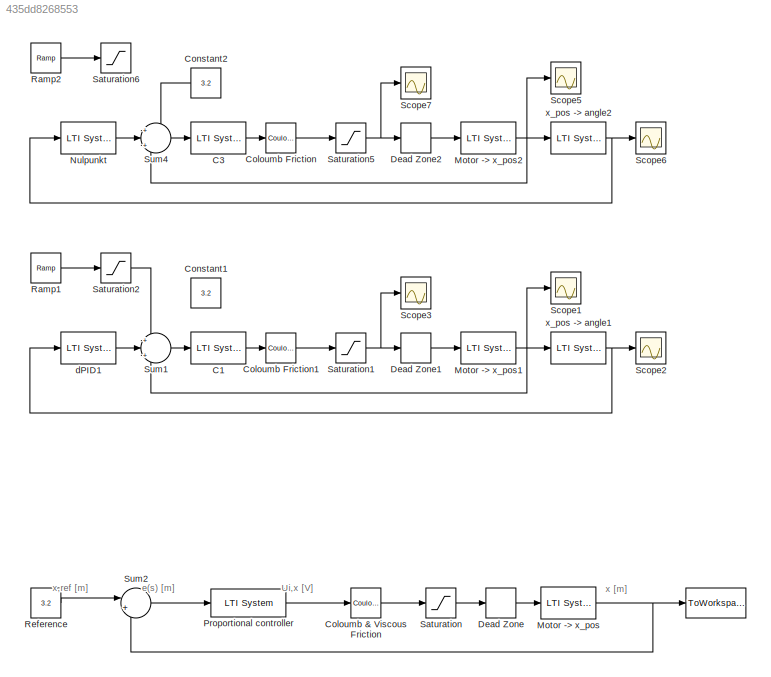
MODEL slx_435dd8268553
KIND model
CONFIG AbsTol = auto
CONFIG FixedStep = auto
CONFIG MaxStep = auto
CONFIG MinStep = auto
CONFIG RelTol = 1e-3
CONFIG SampleTimeConstraint = Unconstrained
CONFIG Solver = ode45
CONFIG SolverMode = Auto
CONFIG SolverName = ode45
CONFIG StartTime = 0.0
CONFIG StopTime = 10
BLOCK [ToWorkspace]  
  FixptAsFi = on
  MaxDataPoints = inf
  Ports = [1]
  SampleTime = -1
  Save2DSignal = 3-D array (concatenate along third dimension)
  SaveFormat = Timeseries
  VariableName = Pos_out
BLOCK [Reference] C1  REF=cstblocks/LTI System
  IC = []
  Ports = [1, 1]
  SourceBlock = cstblocks/LTI System
  SourceType = LTI Block
  sys = C1
BLOCK [Reference] C3  REF=cstblocks/LTI System
  IC = []
  Ports = [1, 1]
  SourceBlock = cstblocks/LTI System
  SourceType = LTI Block
  sys = C1
BLOCK [Reference] Coloumb & Viscous Friction  REF=simulink/Discontinuities/Coulomb &
Viscous Friction
  Ports = [1, 1]
  SourceBlock = simulink/Discontinuities/Coulomb &\nViscous Friction
  SourceType = Coulombic and Viscous Friction
  gain = 1
  offset = [4.2]
BLOCK [Reference] Coloumb Friction  REF=simulink/Discontinuities/Coulomb &
Viscous Friction
  Ports = [1, 1]
  SourceBlock = simulink/Discontinuities/Coulomb &\nViscous Friction
  SourceType = Coulombic and Viscous Friction
  gain = 1
  offset = [4.2]
BLOCK [Reference] Coloumb Friction1  REF=simulink/Discontinuities/Coulomb &
Viscous Friction
  Ports = [1, 1]
  SourceBlock = simulink/Discontinuities/Coulomb &\nViscous Friction
  SourceType = Coulombic and Viscous Friction
  gain = 1
  offset = [4.2]
BLOCK [Constant] Constant1
  Value = 3.2
BLOCK [Constant] Constant2
  Value = 3.2
BLOCK [DeadZone] Dead Zone
  LowerValue = -4.2
  UpperValue = 4.2
BLOCK [DeadZone] Dead Zone1
  LowerValue = -4.2
  UpperValue = 4.2
BLOCK [DeadZone] Dead Zone2
  LowerValue = -4.2
  UpperValue = 4.2
BLOCK [Reference] Motor -> x_pos  REF=cstblocks/LTI System
  IC = []
  Ports = [1, 1]
  SourceBlock = cstblocks/LTI System
  SourceType = LTI Block
  sys = X
BLOCK [Reference] Motor -> x_pos1  REF=cstblocks/LTI System
  IC = []
  Ports = [1, 1]
  SourceBlock = cstblocks/LTI System
  SourceType = LTI Block
  sys = Xm
BLOCK [Reference] Motor -> x_pos2  REF=cstblocks/LTI System
  IC = []
  Ports = [1, 1]
  SourceBlock = cstblocks/LTI System
  SourceType = LTI Block
  sys = Xm
BLOCK [Reference] Nulpunkt  REF=cstblocks/LTI System
  IC = []
  Ports = [1, 1]
  SourceBlock = cstblocks/LTI System
  SourceType = LTI Block
  sys = dD
BLOCK [Reference] Proportional controller  REF=cstblocks/LTI System
  IC = []
  Ports = [1, 1]
  SourceBlock = cstblocks/LTI System
  SourceType = LTI Block
  sys = C1
BLOCK [Reference] Ramp1  REF=simulink/Sources/Ramp
  Ports = [0, 1]
  SourceBlock = simulink/Sources/Ramp
  SourceType = Ramp
  VectorParams1D = on
  X0 = 0
  slope = .5
  start = 0
BLOCK [Reference] Ramp2  REF=simulink/Sources/Ramp
  Ports = [0, 1]
  SourceBlock = simulink/Sources/Ramp
  SourceType = Ramp
  VectorParams1D = on
  X0 = 0
  slope = .5
  start = 0
BLOCK [Constant] Reference
  Value = 3.2
BLOCK [Saturate] Saturation
  InputPortMap = u0
  LowerLimit = -12.5
  Ports = [1, 1]
  UpperLimit = 12.5
BLOCK [Saturate] Saturation1
  InputPortMap = u0
  LowerLimit = -12.5
  Ports = [1, 1]
  UpperLimit = 12.5
BLOCK [Saturate] Saturation2
  InputPortMap = u0
  LowerLimit = 0
  Ports = [1, 1]
  UpperLimit = 3.2
BLOCK [Saturate] Saturation5
  InputPortMap = u0
  LowerLimit = -12.5
  Ports = [1, 1]
  UpperLimit = 12.5
BLOCK [Saturate] Saturation6
  InputPortMap = u0
  LowerLimit = 0
  Ports = [1, 1]
  UpperLimit = 3.2
BLOCK [Scope] Scope1
  Floating = off
  LimitDataPoints = off
  NumInputPorts = 1
  Ports = [1]
BLOCK [Scope] Scope2
  Floating = off
  LimitDataPoints = off
  NumInputPorts = 1
  Ports = [1]
  SaveName = ScopeData1
  YMax = 0.0009
  YMin = -0.0005
  ZoomMode = yonly
BLOCK [Scope] Scope3
  Floating = off
  LimitDataPoints = off
  NumInputPorts = 1
  Ports = [1]
  SaveName = ScopeData2
BLOCK [Scope] Scope5
  Floating = off
  LimitDataPoints = off
  NumInputPorts = 1
  Ports = [1]
  SaveName = ScopeData4
BLOCK [Scope] Scope6
  Floating = off
  LimitDataPoints = off
  NumInputPorts = 1
  Ports = [1]
  SaveName = ScopeData5
  YMax = 0.0009
  YMin = -0.0005
  ZoomMode = yonly
BLOCK [Scope] Scope7
  Floating = off
  LimitDataPoints = off
  NumInputPorts = 1
  Ports = [1]
  SaveName = ScopeData6
BLOCK [Sum] Sum1
  IconShape = round
  InputSameDT = off
  Inputs = +|+|-
  OutDataTypeStr = Inherit: Inherit via internal rule
  Ports = [3, 1]
  SaturateOnIntegerOverflow = off
BLOCK [Sum] Sum2
  IconShape = round
  InputSameDT = off
  Inputs = |+-
  OutDataTypeStr = Inherit: Inherit via internal rule
  Ports = [2, 1]
  SaturateOnIntegerOverflow = off
BLOCK [Sum] Sum4
  IconShape = round
  InputSameDT = off
  Inputs = +|+|-
  OutDataTypeStr = Inherit: Inherit via internal rule
  Ports = [3, 1]
  SaturateOnIntegerOverflow = off
BLOCK [Reference] dPID1  REF=cstblocks/LTI System
  IC = []
  Ports = [1, 1]
  SourceBlock = cstblocks/LTI System
  SourceType = LTI Block
  sys = k
BLOCK [Reference] x_pos -> angle1  REF=cstblocks/LTI System
  IC = []
  Ports = [1, 1]
  SourceBlock = cstblocks/LTI System
  SourceType = LTI Block
  sys = Wm
BLOCK [Reference] x_pos -> angle2  REF=cstblocks/LTI System
  IC = []
  Ports = [1, 1]
  SourceBlock = cstblocks/LTI System
  SourceType = LTI Block
  sys = Wm
ANNOTATION (root): Ui,x [V]
ANNOTATION (root): e(s) [m]
ANNOTATION (root): x [m]
ANNOTATION (root): x,ref [m]
LINE C1:1 -> Coloumb Friction1:1
LINE C3:1 -> Coloumb Friction:1
LINE Coloumb & Viscous Friction:1 -> Saturation:1
LINE Coloumb Friction1:1 -> Saturation1:1
LINE Coloumb Friction:1 -> Saturation5:1
LINE Constant2:1 -> Sum4:1
LINE Dead Zone1:1 -> Motor -> x_pos1:1
LINE Dead Zone2:1 -> Motor -> x_pos2:1
LINE Dead Zone:1 -> Motor -> x_pos:1
NET Motor -> x_pos1:1 -> Scope1:1, Sum1:3, x_pos -> angle1:1
NET Motor -> x_pos2:1 -> Scope5:1, Sum4:3, x_pos -> angle2:1
NET Motor -> x_pos:1 ->  :1, Sum2:2
LINE Nulpunkt:1 -> Sum4:2
LINE Proportional controller:1 -> Coloumb & Viscous Friction:1
LINE Ramp1:1 -> Saturation2:1
LINE Ramp2:1 -> Saturation6:1
LINE Reference:1 -> Sum2:1
NET Saturation1:1 -> Dead Zone1:1, Scope3:1
LINE Saturation2:1 -> Sum1:1
NET Saturation5:1 -> Dead Zone2:1, Scope7:1
LINE Saturation:1 -> Dead Zone:1
LINE Sum1:1 -> C1:1
LINE Sum2:1 -> Proportional controller:1
LINE Sum4:1 -> C3:1
LINE dPID1:1 -> Sum1:2
NET x_pos -> angle1:1 -> Scope2:1, dPID1:1
NET x_pos -> angle2:1 -> Nulpunkt:1, Scope6:1
note: NET lines group one-source signal fan-out (src -> all destinations, sorted); 1:1 wires keep LINE
